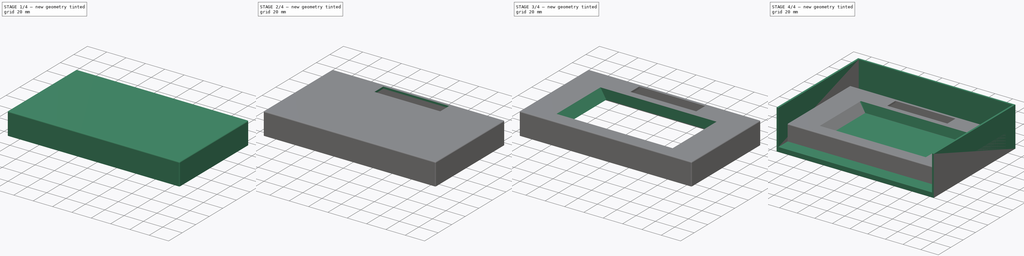
[diagram: build sequence overview — one tinted view per stage of 4, left to right]
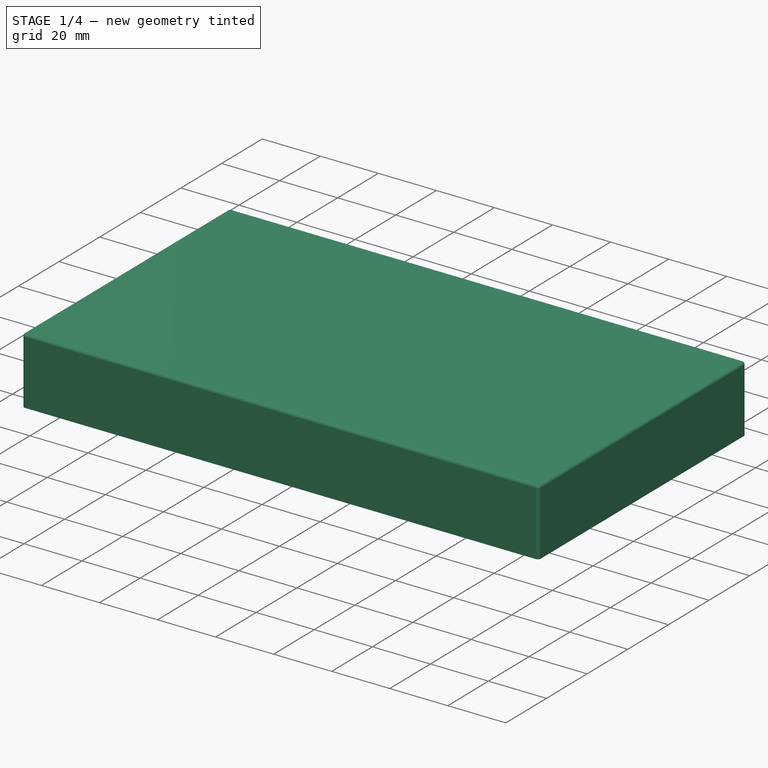
[diagram: stage 1 of 4 — iso view after this stage's code; geometry added in this stage tinted green]
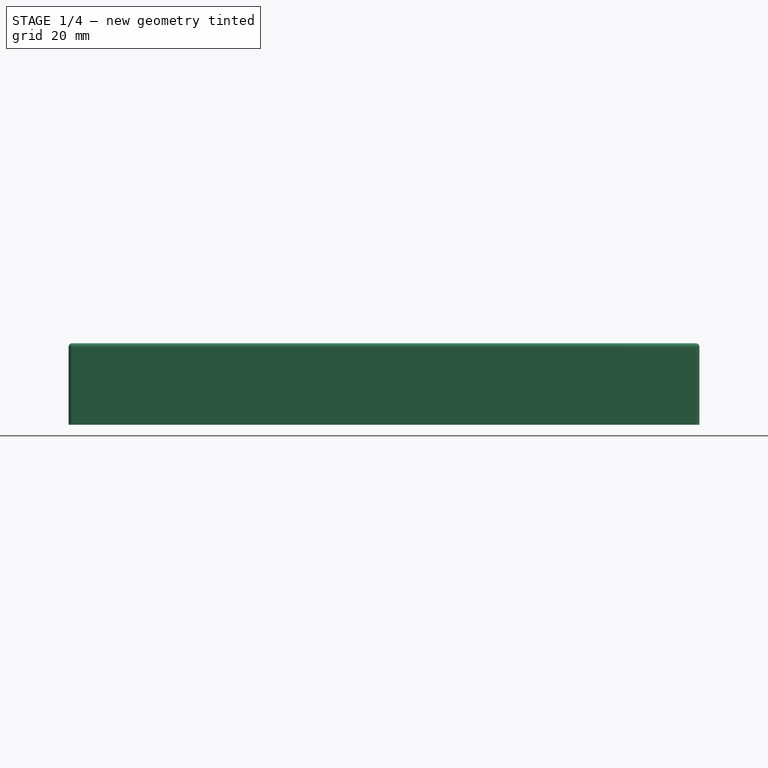
[diagram: stage 1 of 4 — front view after this stage's code; geometry added in this stage tinted green]
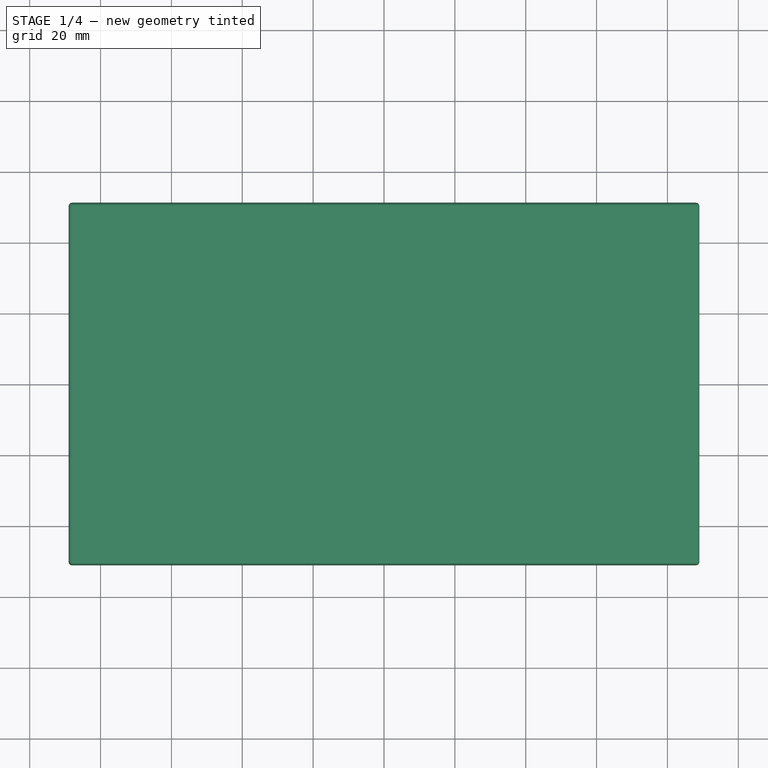
[diagram: stage 1 of 4 — top view after this stage's code; geometry added in this stage tinted green]
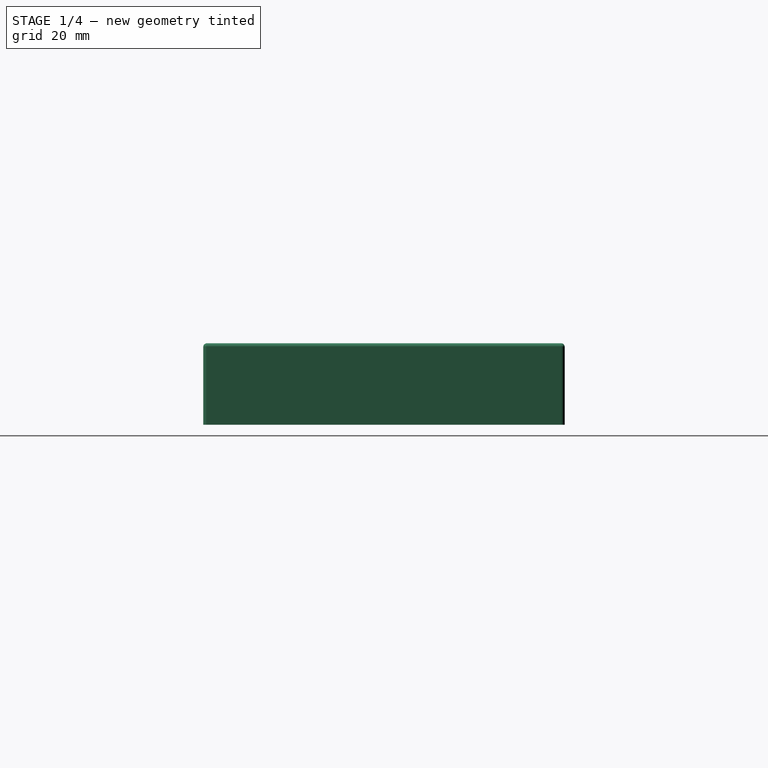
[diagram: stage 1 of 4 — right view after this stage's code; geometry added in this stage tinted green]
FCSTD DOCUMENT  (FreeCAD 0.21R33675 (Git))
Label: Double DIN Screen 5 Inch
License: All rights reserved
LicenseURL: https://en.wikipedia.org/wiki/All_rights_reserved
objects: Sketcher::SketchObject×10, PartDesign::Pocket×6, PartDesign::Pad×4, PartDesign::Body×2, PartDesign::Fillet×1, PartDesign::Chamfer×1
note: 36 computed .brp shape members not serialized (recipe doc carries the construction recipe); baked Part::Feature solids carry a one-line shape summary decoded from their .brp

FEATURE [PartDesign::Body] Body  label="Screen Base"
  Group = -> [Sketch,Pad,Sketch001,Pocket]
  Origin = -> Origin
  Tip = -> Pocket
FEATURE [Sketcher::SketchObject] Sketch002  label="Screen Panel Base Sketch"
  FullyConstrained = true
  MapMode = 5
  Support = -> [XY_Plane001]
  sketch-geometry (14):
    g0: LineSegment StartX=-89 StartY=51 StartZ=0 EndX=89 EndY=51 EndZ=0
    g1: LineSegment StartX=89 StartY=51 StartZ=0 EndX=89 EndY=-51 EndZ=0
    g2: LineSegment StartX=89 StartY=-51 StartZ=0 EndX=-89 EndY=-51 EndZ=0
    g3: LineSegment StartX=-89 StartY=-51 StartZ=0 EndX=-89 EndY=51 EndZ=0
    g4: LineSegment StartX=-89 StartY=50 StartZ=0 EndX=-89 EndY=-50 EndZ=0
    g5: LineSegment StartX=89 StartY=50 StartZ=0 EndX=89 EndY=-50 EndZ=0
    g6: LineSegment StartX=-88 StartY=51 StartZ=0 EndX=88 EndY=51 EndZ=0
    g7: LineSegment StartX=-88 StartY=-51 StartZ=0 EndX=88 EndY=-51 EndZ=0
    g8: ArcOfCircle CenterX=-88 CenterY=50 CenterZ=0 NormalX=0 NormalY=0 NormalZ=1 AngleXU=0 Radius=1 StartAngle=1.5708 EndAngle=3.14159
    g9: ArcOfCircle CenterX=88 CenterY=50 CenterZ=0 NormalX=0 NormalY=0 NormalZ=1 AngleXU=0 Radius=1 StartAngle=-2.7e-15 EndAngle=1.5708
    g10: ArcOfCircle CenterX=-88 CenterY=-50 CenterZ=0 NormalX=0 NormalY=0 NormalZ=1 AngleXU=0 Radius=1 StartAngle=3.14159 EndAngle=4.71239
    g11: ArcOfCircle CenterX=88 CenterY=-50 CenterZ=0 NormalX=0 NormalY=0 NormalZ=1 AngleXU=0 Radius=1 StartAngle=4.71239 EndAngle=6.28319
    g12: LineSegment StartX=88 StartY=-50 StartZ=0 EndX=89 EndY=-50 EndZ=0
    g13: LineSegment StartX=88 StartY=-50 StartZ=0 EndX=88 EndY=-51 EndZ=0
  constraints (38):
    c: Coincident(g0,g1)
    c: Coincident(g1,g2)
    c: Coincident(g2,g3)
    c: Coincident(g3,g0)
    c: Horizontal(g2)
    c: Vertical(g1)
    c: Symmetric(g0,g0,g-2)
    c: Symmetric(g0,g2,g-1)
    c: DistanceY(g3,g3) = 102
    c: DistanceX(g0,g0) = 178
    c: PointOnObject(g4,g3)
    c: PointOnObject(g5,g1)
    c: PointOnObject(g6,g0)
    c: PointOnObject(g7,g2)
    c: Symmetric(g7,g7,g-2)
    c: Equal(g7,g6)
    c: Symmetric(g6,g6,g-2)
    c: Symmetric(g4,g4,g-1)
    c: Symmetric(g5,g5,g-1)
    c: Equal(g4,g5)
    c: Coincident(g8,g4)
    c: Coincident(g8,g6)
    c: Angle(g8) = 1.5708
    c: Coincident(g9,g6)
    c: Coincident(g9,g5)
    c: Angle(g9) = 1.5708
    c: Coincident(g10,g4)
    c: Coincident(g10,g7)
    c: Equal(g10,g8)
    c: Coincident(g11,g7)
    c: Coincident(g11,g5)
    c: Equal(g11,g8)
    c: Coincident(g12,g11)
    c: Coincident(g12,g5)
    c: Horizontal(g12)
    c: Coincident(g13,g11)
    c: Coincident(g13,g7)
    c: Radius(g9) = 1
FEATURE [PartDesign::Pad] Pad001  label="Screen Panel Base"
  Direction = (0,0,1)
  Length = 23
  Length2 = 10
  Profile = -> Sketch002
  ReferenceAxis = -> Sketch002 [N_Axis]
  Type = 0
FEATURE [PartDesign::Fillet] Fillet  label="Screen Panel Base Fillet"
  Base = -> Pad001 [Edge7]
  BaseFeature = -> Pad001
  Radius = 1
  SupportTransform = false
  UseAllEdges = false
FEATURE [Sketcher::SketchObject] Sketch003  label="Screen Panel Shell Sketch"
  ExternalGeometry = -> [Fillet]
  FullyConstrained = true
  MapMode = 5
  Placement = pos=(0,0,0) rot=(1,0,0;3.14159rad)
  Support = -> [Fillet]
  sketch-geometry (18):
    g0: LineSegment StartX=-87 StartY=-48 StartZ=0 EndX=-87 EndY=48 EndZ=0
    g1: LineSegment StartX=-86 StartY=49 StartZ=0 EndX=86 EndY=49 EndZ=0
    g2: LineSegment StartX=87 StartY=48 StartZ=0 EndX=87 EndY=-48 EndZ=0
    g3: LineSegment StartX=86 StartY=-49 StartZ=0 EndX=-86 EndY=-49 EndZ=0
    g4: ArcOfCircle CenterX=-86 CenterY=48 CenterZ=0 NormalX=0 NormalY=0 NormalZ=1 AngleXU=0 Radius=1 StartAngle=1.5708 EndAngle=3.14159
    g5: LineSegment StartX=-86 StartY=49 StartZ=0 EndX=-86 EndY=48 EndZ=0
    g6: LineSegment StartX=-86 StartY=48 StartZ=0 EndX=-87 EndY=48 EndZ=0
    g7: ArcOfCircle CenterX=86 CenterY=-48 CenterZ=0 NormalX=0 NormalY=0 NormalZ=1 AngleXU=0 Radius=1 StartAngle=4.71239 EndAngle=6.28319
    g8: LineSegment StartX=86 StartY=-49 StartZ=0 EndX=86 EndY=-48 EndZ=0
    g9: LineSegment StartX=86 StartY=-48 StartZ=0 EndX=87 EndY=-48 EndZ=0
    g10: ArcOfCircle CenterX=86 CenterY=48 CenterZ=0 NormalX=0 NormalY=0 NormalZ=1 AngleXU=0 Radius=1 StartAngle=-2.7e-15 EndAngle=1.5708
    g11: LineSegment StartX=86 StartY=49 StartZ=0 EndX=86 EndY=48 EndZ=0
    g12: LineSegment StartX=86 StartY=48 StartZ=0 EndX=87 EndY=48 EndZ=0
    g13: ArcOfCircle CenterX=-86 CenterY=-48 CenterZ=0 NormalX=0 NormalY=0 NormalZ=1 AngleXU=0 Radius=1 StartAngle=3.14159 EndAngle=4.71239
    g14: LineSegment StartX=-87 StartY=-48 StartZ=0 EndX=-86 EndY=-48 EndZ=0
    g15: LineSegment StartX=-86 StartY=-48 StartZ=0 EndX=-86 EndY=-49 EndZ=0
    g16: LineSegment StartX=-87 StartY=48 StartZ=0 EndX=-89 EndY=48 EndZ=0
    g17: LineSegment StartX=-86 StartY=49 StartZ=0 EndX=-86 EndY=51 EndZ=0
  constraints (45):
    c: Equal(g3,g1)
    c: Symmetric(g1,g1,g-2)
    c: Symmetric(g3,g3,g-2)
    c: Symmetric(g0,g0,g-1)
    c: Symmetric(g2,g2,g-1)
    c: Coincident(g4,g0)
    c: Coincident(g4,g1)
    c: Coincident(g5,g1)
    c: Coincident(g5,g4)
    c: Coincident(g6,g4)
    c: Coincident(g6,g0)
    c: Horizontal(g6)
    c: Vertical(g5)
    c: Symmetric(g2,g0,g-2)
    c: Coincident(g7,g3)
    c: Coincident(g7,g2)
    c: Equal(g7,g4)
    c: Coincident(g8,g3)
    c: Coincident(g8,g7)
    c: Coincident(g9,g7)
    c: Coincident(g9,g2)
    c: Horizontal(g9)
    c: Coincident(g10,g1)
    c: Coincident(g10,g2)
    c: Equal(g4,g10)
    c: Coincident(g11,g1)
    c: Coincident(g11,g10)
    c: Coincident(g12,g10)
    c: Coincident(g12,g2)
    c: Coincident(g13,g0)
    c: Coincident(g13,g3)
    c: Coincident(g14,g0)
    c: Coincident(g14,g13)
    c: Horizontal(g14)
    c: Coincident(g15,g13)
    c: Coincident(g15,g3)
    c: Coincident(g16,g0)
    c: PointOnObject(g16,g-3)
    c: Horizontal(g16)
    c: DistanceX(g16,g16) = 2
    c: Coincident(g17,g1)
    c: PointOnObject(g17,g-5)
    c: Vertical(g17)
    c: Equal(g17,g16)
    c: Equal(g4,g-4)
FEATURE [PartDesign::Pocket] Pocket001  label="Screen Panel Shell"
  BaseFeature = -> Fillet
  Direction = (0,0,1)
  Length = 21
  Length2 = 5
  Profile = -> Sketch003
  ReferenceAxis = -> Sketch003 [N_Axis]
  Type = 0
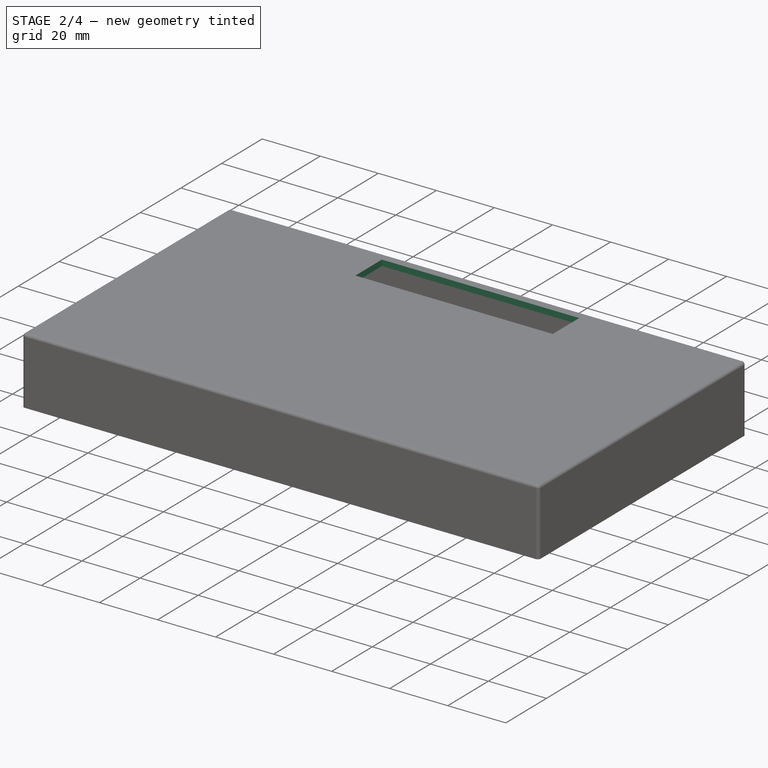
[diagram: stage 2 of 4 — iso view after this stage's code; geometry added in this stage tinted green]
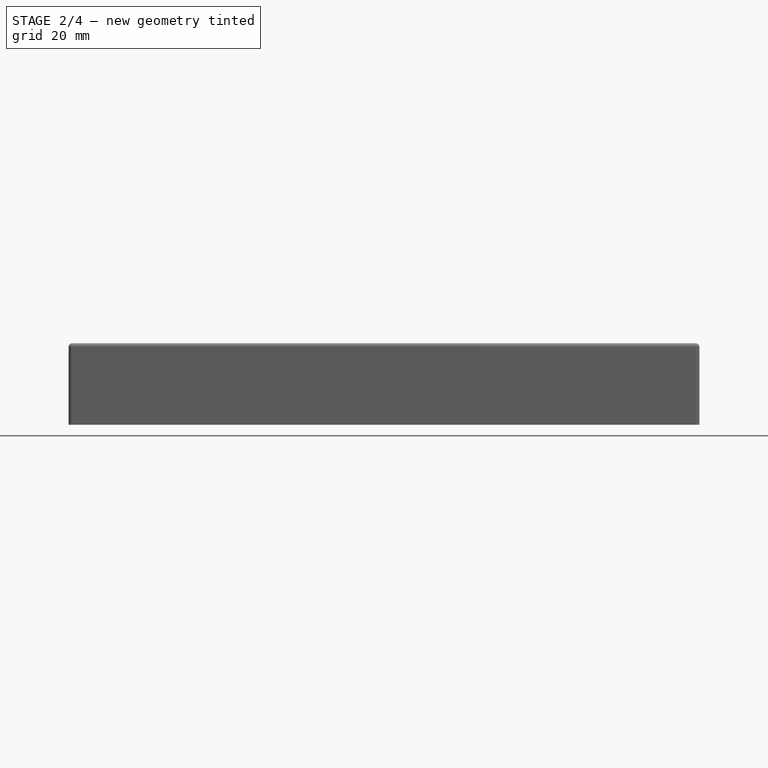
[diagram: stage 2 of 4 — front view after this stage's code; geometry added in this stage tinted green]
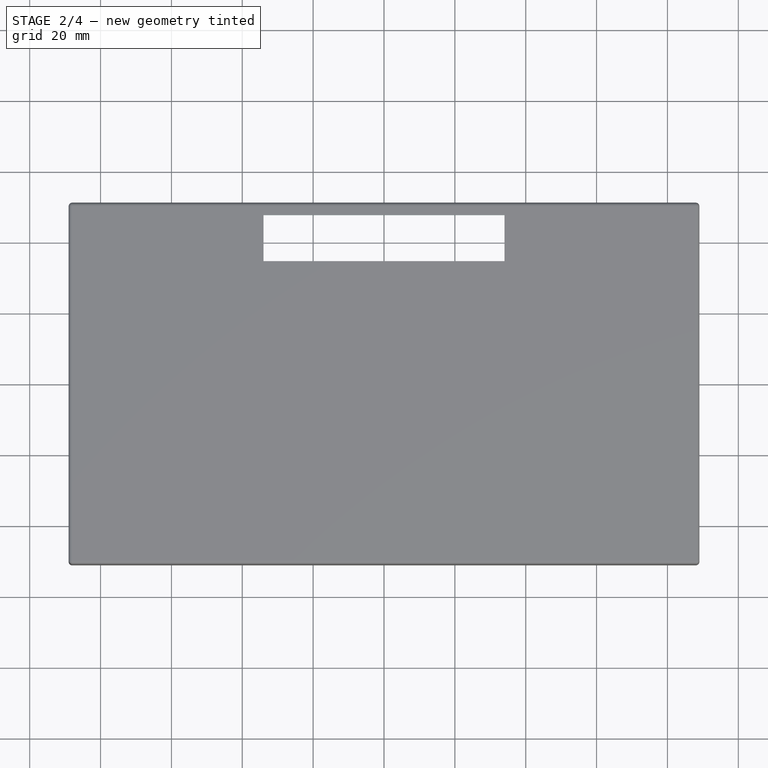
[diagram: stage 2 of 4 — top view after this stage's code; geometry added in this stage tinted green]
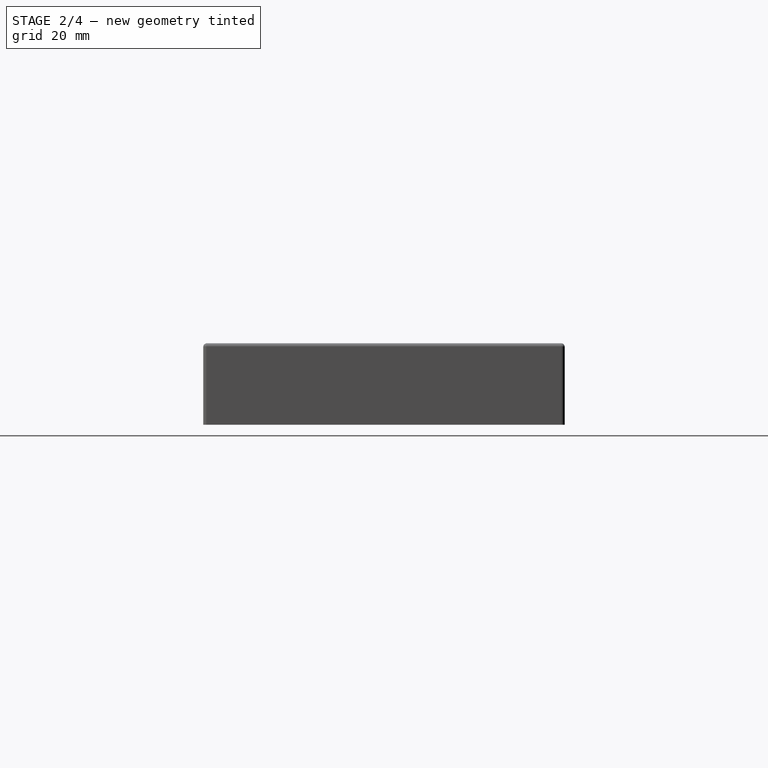
[diagram: stage 2 of 4 — right view after this stage's code; geometry added in this stage tinted green]
FEATURE [Sketcher::SketchObject] Sketch004  label="Screen Display Cut Sketch"
  ExternalGeometry = -> [Pocket001]
  FullyConstrained = true
  MapMode = 5
  Placement = pos=(0,0,23) rot=(0,0,1;0rad)
  Support = -> [Pocket001]
  sketch-geometry (5):
    g0: LineSegment StartX=-60 StartY=29.3 StartZ=0 EndX=60 EndY=29.3 EndZ=0
    g1: LineSegment StartX=60 StartY=29.3 StartZ=0 EndX=60 EndY=-37.5 EndZ=0
    g2: LineSegment StartX=60 StartY=-37.5 StartZ=0 EndX=-60 EndY=-37.5 EndZ=0
    g3: LineSegment StartX=-60 StartY=-37.5 StartZ=0 EndX=-60 EndY=29.3 EndZ=0
    g4: LineSegment StartX=-60 StartY=-37.5 StartZ=0 EndX=-60 EndY=-51 EndZ=0
  constraints (14):
    c: Coincident(g0,g1)
    c: Coincident(g1,g2)
    c: Coincident(g2,g3)
    c: Coincident(g3,g0)
    c: Horizontal(g0)
    c: Vertical(g1)
    c: Vertical(g3)
    c: Symmetric(g2,g1,g-2)
    c: DistanceY(g3,g3) = 66.8
    c: DistanceX(g0,g0) = 120
    c: Coincident(g4,g2)
    c: PointOnObject(g4,g-3)
    c: Vertical(g4)
    c: DistanceY(g4,g4) = 13.5
FEATURE [PartDesign::Pocket] Pocket002  label="Screen Display Cut"
  BaseFeature = -> Pocket001
  Direction = (0,0,-1)
  Length = 5
  Length2 = 5
  Profile = -> Sketch004
  ReferenceAxis = -> Sketch004 [N_Axis]
  Type = 0
FEATURE [Sketcher::SketchObject] Sketch005  label="Tape Slot Cut Sketch"
  ExternalGeometry = -> [Pocket002]
  FullyConstrained = true
  MapMode = 5
  Placement = pos=(0,0,23) rot=(0,0,1;0rad)
  Support = -> [Pocket002]
  sketch-geometry (4):
    g0: LineSegment StartX=-34 StartY=47.5 StartZ=0 EndX=34 EndY=47.5 EndZ=0
    g1: LineSegment StartX=34 StartY=47.5 StartZ=0 EndX=34 EndY=34.5 EndZ=0
    g2: LineSegment StartX=34 StartY=34.5 StartZ=0 EndX=-34 EndY=34.5 EndZ=0
    g3: LineSegment StartX=-34 StartY=34.5 StartZ=0 EndX=-34 EndY=47.5 EndZ=0
  constraints (11):
    c: Coincident(g0,g1)
    c: Coincident(g1,g2)
    c: Coincident(g2,g3)
    c: Coincident(g3,g0)
    c: Horizontal(g0)
    c: Vertical(g1)
    c: Vertical(g3)
    c: DistanceX(g0,g0) = 68
    c: DistanceY(g3,g3) = 13
    c: DistanceY(g0,g-3) = 3.5
    c: Symmetric(g2,g1,g-2)
FEATURE [PartDesign::Pocket] Pocket003  label="Tape Slot Cut"
  BaseFeature = -> Pocket002
  Direction = (0,0,-1)
  Length = 5
  Length2 = 5
  Profile = -> Sketch005
  ReferenceAxis = -> Sketch005 [N_Axis]
  Type = 0
FEATURE [Sketcher::SketchObject] Sketch006  label="Screen Bevel Box Sketch"
  ExternalGeometry = -> [Pocket003]
  FullyConstrained = true
  MapMode = 5
  Placement = pos=(0,0,23) rot=(0,0,1;0rad)
  Support = -> [Pocket003]
  sketch-geometry (4):
    g0: LineSegment StartX=-60 StartY=29.3 StartZ=0 EndX=60 EndY=29.3 EndZ=0
    g1: LineSegment StartX=60 StartY=29.3 StartZ=0 EndX=60 EndY=-37.5 EndZ=0
    g2: LineSegment StartX=60 StartY=-37.5 StartZ=0 EndX=-60 EndY=-37.5 EndZ=0
    g3: LineSegment StartX=-60 StartY=-37.5 StartZ=0 EndX=-60 EndY=29.3 EndZ=0
  constraints (10):
    c: Coincident(g0,g1)
    c: Coincident(g1,g2)
    c: Coincident(g2,g3)
    c: Coincident(g3,g0)
    c: Horizontal(g0)
    c: Horizontal(g2)
    c: Vertical(g1)
    c: Vertical(g3)
    c: Coincident(g0,g-4)
    c: Coincident(g1,g-6)
FEATURE [PartDesign::Pad] Pad002  label="Screen Bevel Box"
  BaseFeature = -> Pocket003
  Direction = (0,0,1)
  Length = 10
  Length2 = 10
  Profile = -> Sketch006
  ReferenceAxis = -> Sketch006 [N_Axis]
  Reversed = true
  Type = 0
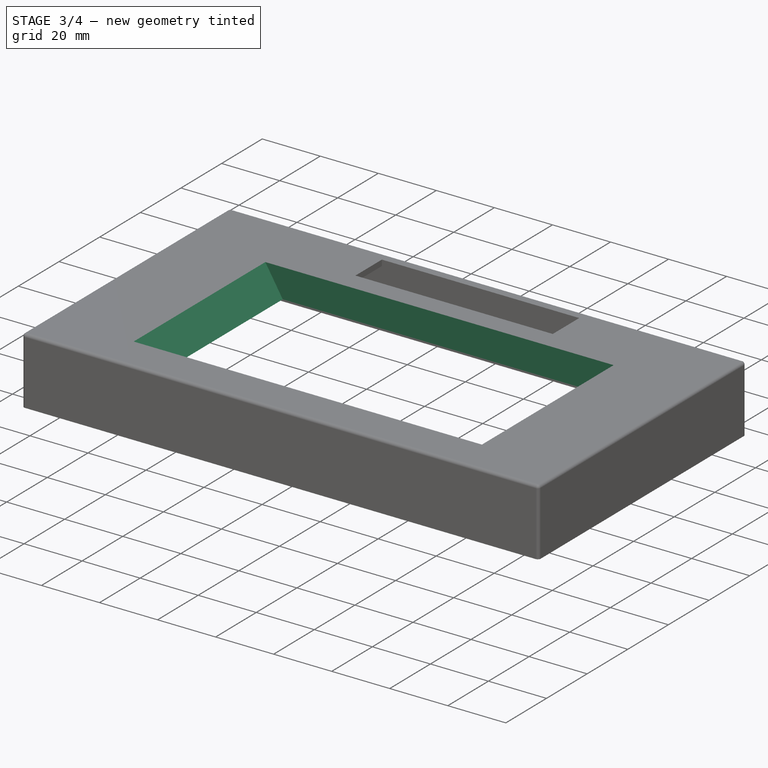
[diagram: stage 3 of 4 — iso view after this stage's code; geometry added in this stage tinted green]
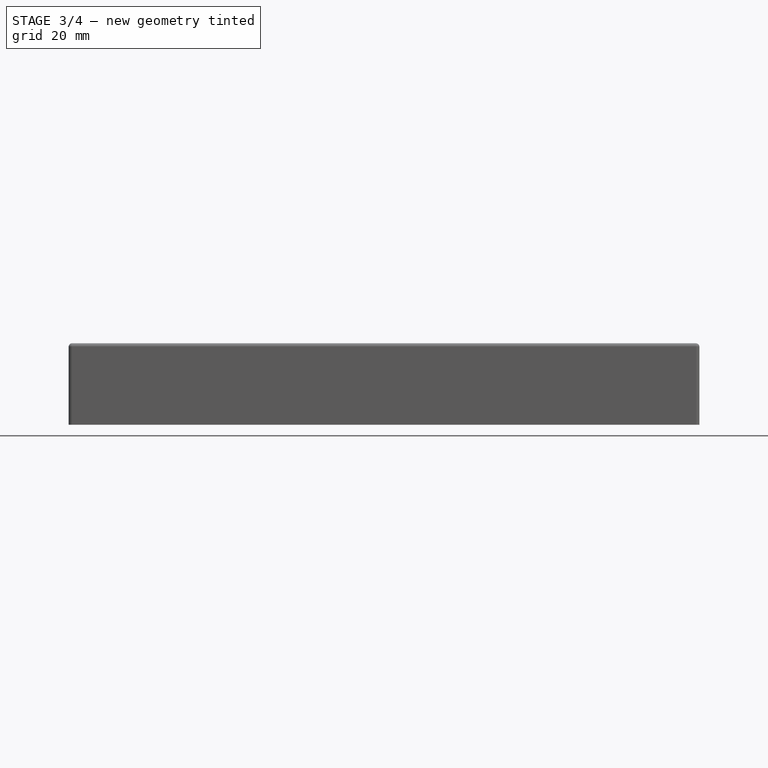
[diagram: stage 3 of 4 — front view after this stage's code; geometry added in this stage tinted green]
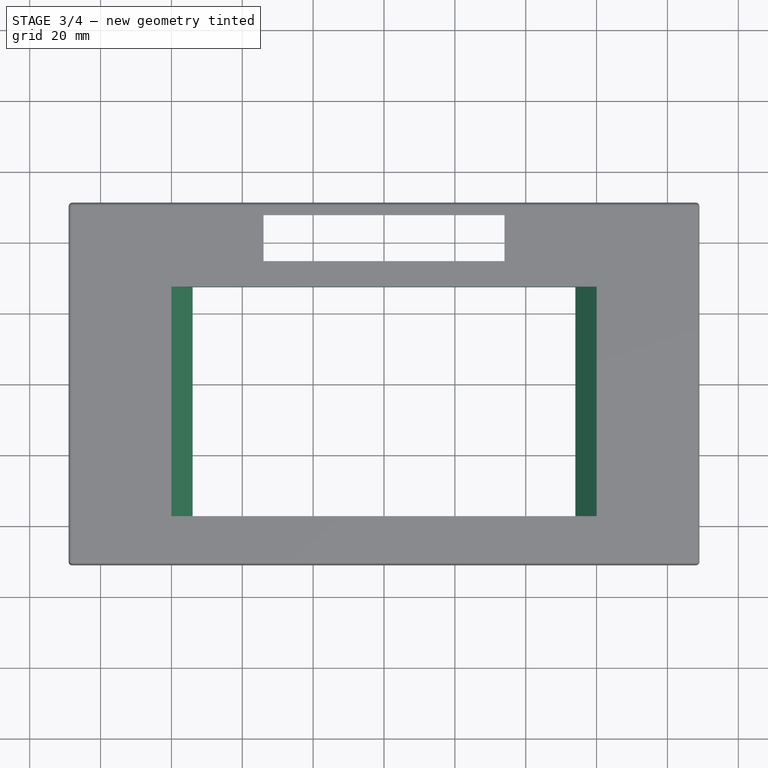
[diagram: stage 3 of 4 — top view after this stage's code; geometry added in this stage tinted green]
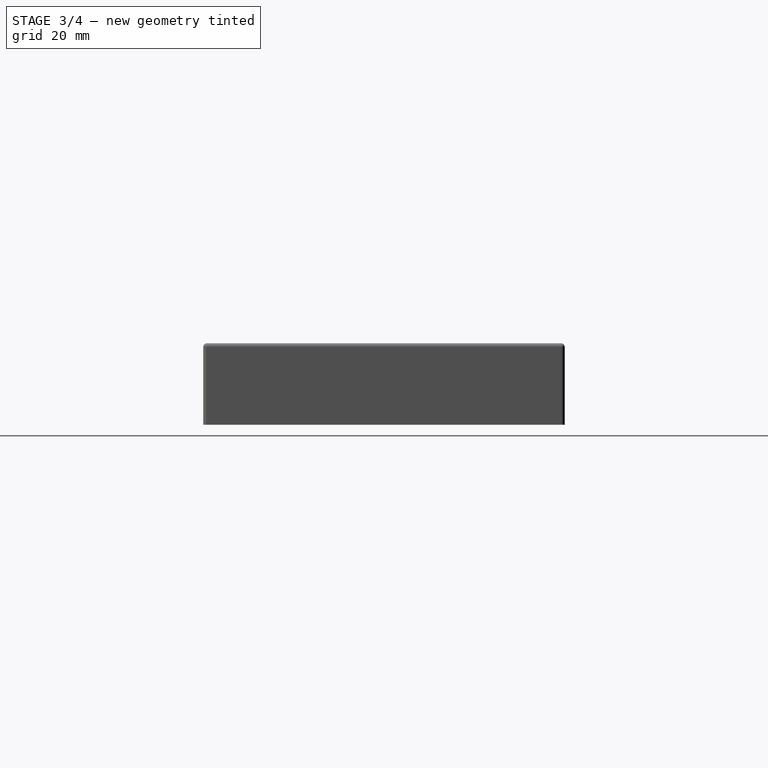
[diagram: stage 3 of 4 — right view after this stage's code; geometry added in this stage tinted green]
FEATURE [Sketcher::SketchObject] Sketch007  label="Screen Display Viewing Area Sketch"
  ExternalGeometry = -> [Pad002]
  FullyConstrained = true
  MapMode = 5
  Placement = pos=(0,0,23) rot=(0,0,1;0rad)
  Support = -> [Pad002]
  sketch-geometry (4):
    g0: LineSegment StartX=-54 StartY=-37.5 StartZ=0 EndX=54 EndY=-37.5 EndZ=0
    g1: LineSegment StartX=54 StartY=-37.5 StartZ=0 EndX=54 EndY=27.3 EndZ=0
    g2: LineSegment StartX=54 StartY=27.3 StartZ=0 EndX=-54 EndY=27.3 EndZ=0
    g3: LineSegment StartX=-54 StartY=27.3 StartZ=0 EndX=-54 EndY=-37.5 EndZ=0
  constraints (11):
    c: Coincident(g0,g1)
    c: Coincident(g1,g2)
    c: Coincident(g2,g3)
    c: Coincident(g3,g0)
    c: Horizontal(g0)
    c: Vertical(g1)
    c: Vertical(g3)
    c: PointOnObject(g0,g-5)
    c: Symmetric(g2,g1,g-2)
    c: DistanceX(g2,g2) = 108
    c: DistanceY(g3,g3) = 64.8
FEATURE [PartDesign::Pocket] Pocket004  label="Scren Display Viewing Area"
  BaseFeature = -> Pad002
  Direction = (0,0,-1)
  Length = 11
  Length2 = 5
  Profile = -> Sketch007
  ReferenceAxis = -> Sketch007 [N_Axis]
  Type = 0
FEATURE [Sketcher::SketchObject] Sketch008  label="Screen Bevel Horizontal Sketch"
  ExternalGeometry = -> [Pocket004]
  FullyConstrained = true
  MapMode = 5
  Placement = pos=(0,27.3,0) rot=(1,0,0;1.5708rad)
  Support = -> [Pocket004]
  sketch-geometry (6):
    g0: LineSegment StartX=-60 StartY=23 StartZ=0 EndX=-54 EndY=23 EndZ=0
    g1: LineSegment StartX=-54 StartY=23 StartZ=0 EndX=-54 EndY=13 EndZ=0
    g2: LineSegment StartX=-54 StartY=13 StartZ=0 EndX=-60 EndY=23 EndZ=0
    g3: LineSegment StartX=54 StartY=23 StartZ=0 EndX=60 EndY=23 EndZ=0
    g4: LineSegment StartX=54 StartY=23 StartZ=0 EndX=54 EndY=13 EndZ=0
    g5: LineSegment StartX=54 StartY=13 StartZ=0 EndX=60 EndY=23 EndZ=0
  constraints (12):
    c: Coincident(g0,g-6)
    c: Coincident(g0,g-7)
    c: Coincident(g1,g0)
    c: Coincident(g1,g-8)
    c: Coincident(g2,g1)
    c: Coincident(g2,g0)
    c: Coincident(g3,g-3)
    c: Coincident(g3,g-4)
    c: Coincident(g4,g3)
    c: Coincident(g4,g-3)
    c: Coincident(g5,g4)
    c: Coincident(g5,g3)
FEATURE [PartDesign::Pocket] Pocket005  label="Screen Bevel Horizontal"
  BaseFeature = -> Pocket004
  Direction = (0,1,-2e-16)
  Length = 64.8
  Length2 = 5
  Profile = -> Sketch008
  ReferenceAxis = -> Sketch008 [N_Axis]
  Reversed = true
  Type = 0
FEATURE [Sketcher::SketchObject] Sketch009  label="Screen Support Sketch"
  ExternalGeometry = -> [Pocket005]
  FullyConstrained = true
  MapMode = 5
  Placement = pos=(0,0,21) rot=(1,0,0;3.14159rad)
  Support = -> [Pocket005]
  sketch-geometry (8):
    g0: LineSegment StartX=60 StartY=-29.3 StartZ=0 EndX=-60 EndY=-29.3 EndZ=0
    g1: LineSegment StartX=-60 StartY=-29.3 StartZ=0 EndX=-60 EndY=-30.3 EndZ=0
    g2: LineSegment StartX=-60 StartY=-30.3 StartZ=0 EndX=60 EndY=-30.3 EndZ=0
    g3: LineSegment StartX=60 StartY=-30.3 StartZ=0 EndX=60 EndY=-29.3 EndZ=0
    g4: LineSegment StartX=60 StartY=37.5 StartZ=0 EndX=-60 EndY=37.5 EndZ=0
    g5: LineSegment StartX=-60 StartY=37.5 StartZ=0 EndX=-60 EndY=45.5 EndZ=0
    g6: LineSegment StartX=-60 StartY=45.5 StartZ=0 EndX=60 EndY=45.5 EndZ=0
    g7: LineSegment StartX=60 StartY=45.5 StartZ=0 EndX=60 EndY=37.5 EndZ=0
  constraints (20):
    c: Coincident(g0,g1)
    c: Coincident(g1,g2)
    c: Coincident(g2,g3)
    c: Coincident(g3,g0)
    c: Horizontal(g2)
    c: Vertical(g1)
    c: Vertical(g3)
    c: Coincident(g0,g-3)
    c: Coincident(g0,g-3)
    c: DistanceY(g1,g1) = 1
    c: Coincident(g4,g5)
    c: Coincident(g5,g6)
    c: Coincident(g6,g7)
    c: Coincident(g7,g4)
    c: Horizontal(g6)
    c: Vertical(g5)
    c: Vertical(g7)
    c: Coincident(g4,g-6)
    c: Coincident(g4,g-7)
    c: DistanceY(g7,g7) = 8
FEATURE [PartDesign::Pad] Pad003  label="Screen Support"
  BaseFeature = -> Pocket005
  Direction = (0,0,-1)
  Length = 8
  Length2 = 10
  Profile = -> Sketch009
  ReferenceAxis = -> Sketch009 [N_Axis]
  Type = 0
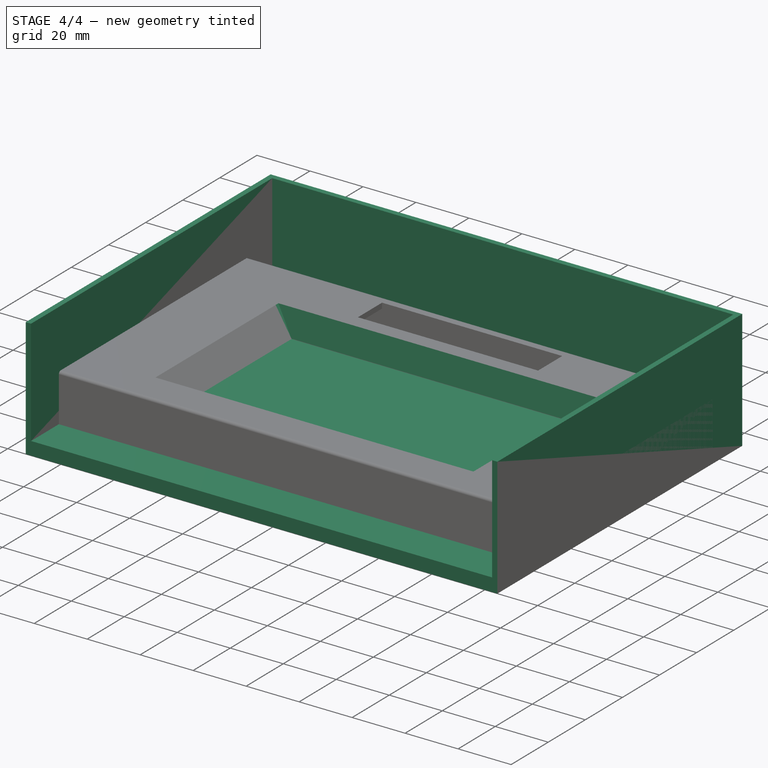
[diagram: stage 4 of 4 — iso view after this stage's code; geometry added in this stage tinted green]
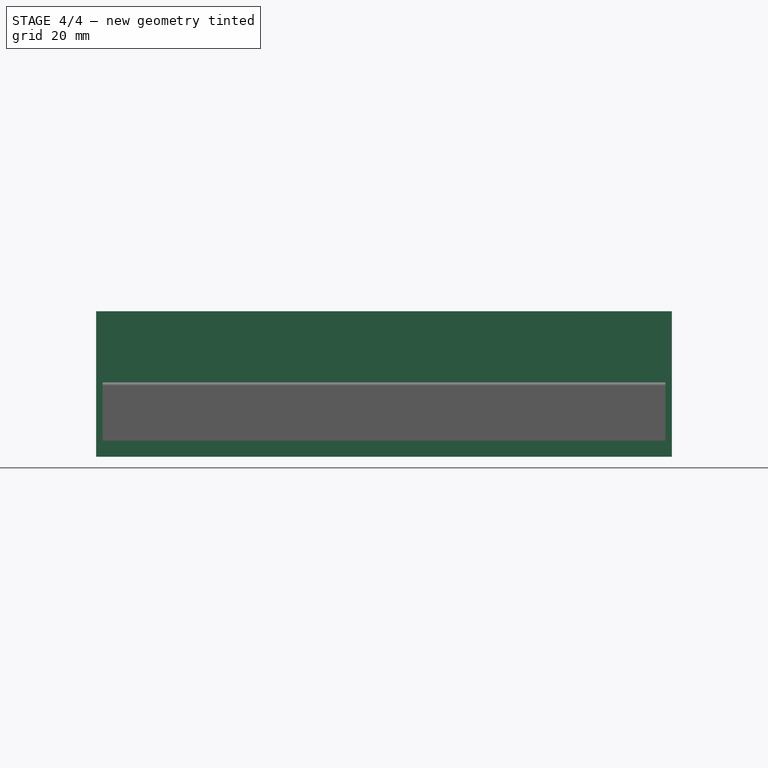
[diagram: stage 4 of 4 — front view after this stage's code; geometry added in this stage tinted green]
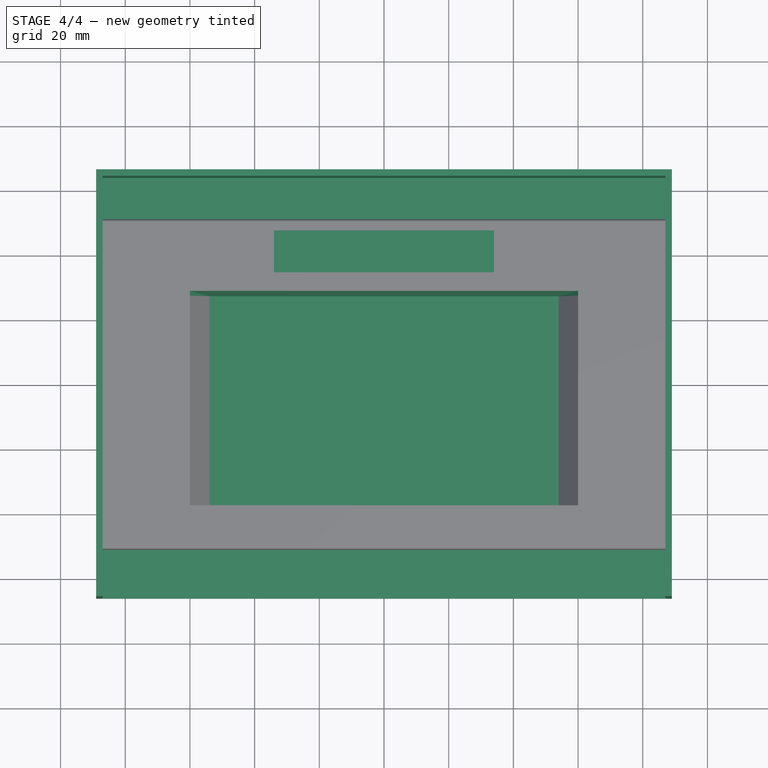
[diagram: stage 4 of 4 — top view after this stage's code; geometry added in this stage tinted green]
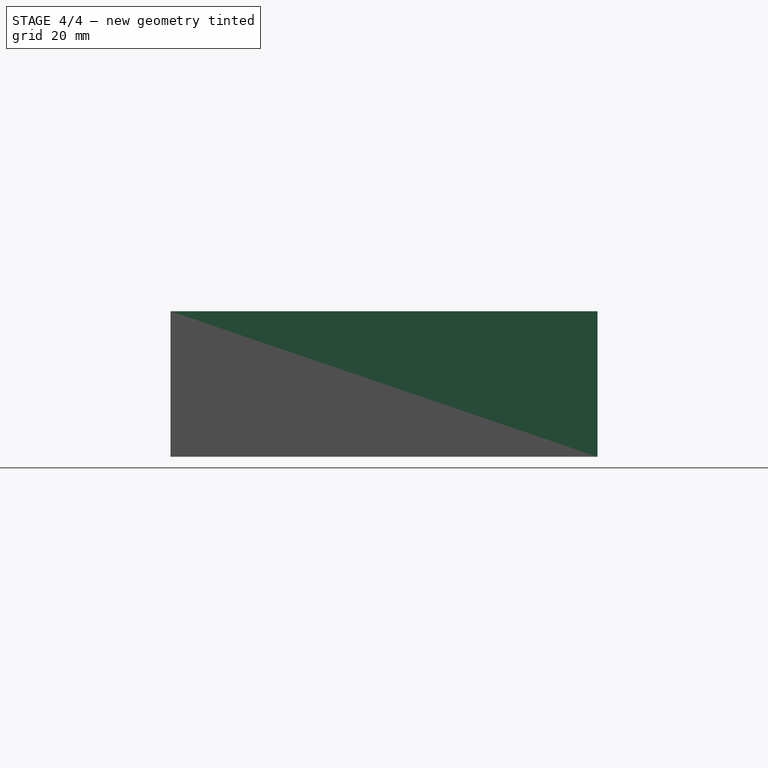
[diagram: stage 4 of 4 — right view after this stage's code; geometry added in this stage tinted green]
FEATURE [Sketcher::SketchObject] Sketch  label="Screen Base Base Sketch"
  FullyConstrained = true
  MapMode = 5
  Support = -> [XY_Plane]
  sketch-geometry (4):
    g0: LineSegment StartX=-89 StartY=66 StartZ=0 EndX=89 EndY=66 EndZ=0
    g1: LineSegment StartX=89 StartY=66 StartZ=0 EndX=89 EndY=-66 EndZ=0
    g2: LineSegment StartX=89 StartY=-66 StartZ=0 EndX=-89 EndY=-66 EndZ=0
    g3: LineSegment StartX=-89 StartY=-66 StartZ=0 EndX=-89 EndY=66 EndZ=0
  constraints (10):
    c: Coincident(g0,g1)
    c: Coincident(g1,g2)
    c: Coincident(g2,g3)
    c: Coincident(g3,g0)
    c: Horizontal(g2)
    c: Vertical(g1)
    c: Symmetric(g0,g2,g-1)
    c: Symmetric(g0,g0,g-2)
    c: DistanceX(g0,g0) = 178
    c: DistanceY(g3,g3) = 132
FEATURE [PartDesign::Pad] Pad  label="Screen Base Base"
  Direction = (0,0,1)
  Length = 45
  Length2 = 10
  Profile = -> Sketch
  ReferenceAxis = -> Sketch [N_Axis]
  Type = 0
FEATURE [Sketcher::SketchObject] Sketch001  label="Screen Base Shell Sketch"
  ExternalGeometry = -> [Pad]
  FullyConstrained = true
  MapMode = 5
  Placement = pos=(0,0,45) rot=(0,0,1;0rad)
  Support = -> [Pad]
  sketch-geometry (4):
    g0: LineSegment StartX=-87 StartY=64 StartZ=0 EndX=87 EndY=64 EndZ=0
    g1: LineSegment StartX=87 StartY=64 StartZ=0 EndX=87 EndY=-66 EndZ=0
    g2: LineSegment StartX=87 StartY=-66 StartZ=0 EndX=-87 EndY=-66 EndZ=0
    g3: LineSegment StartX=-87 StartY=-66 StartZ=0 EndX=-87 EndY=64 EndZ=0
  constraints (11):
    c: Coincident(g0,g1)
    c: Coincident(g1,g2)
    c: Coincident(g2,g3)
    c: Coincident(g3,g0)
    c: Horizontal(g2)
    c: Vertical(g1)
    c: Vertical(g3)
    c: PointOnObject(g1,g-6)
    c: Symmetric(g0,g0,g-2)
    c: DistanceX(g-4,g0) = 2
    c: DistanceY(g0,g-4) = 2
FEATURE [PartDesign::Pocket] Pocket  label="Screen Base Shell"
  BaseFeature = -> Pad
  Direction = (0,0,-1)
  Length = 40
  Length2 = 5
  Profile = -> Sketch001
  ReferenceAxis = -> Sketch001 [N_Axis]
  Type = 0
FEATURE [PartDesign::Chamfer] Chamfer  label="Screen Bevel Vertical"
  Angle = 45
  Base = -> Pad003 [Edge94,Edge93,Edge95]
  BaseFeature = -> Pad003
  ChamferType = 1
  FlipDirection = false
  Size = 1.5
  Size2 = 9.9
  SupportTransform = false
  UseAllEdges = false
FEATURE [PartDesign::Body] Body001  label="Screen Panel"
  Group = -> [Sketch002,Pad001,Fillet,Sketch003,Pocket001,Sketch004,Pocket002,Sketch005,Pocket003,Sketch006,Pad002,Sketch007,Pocket004,Sketch008,Pocket005,Sketch009,Pad003,Chamfer]
  Origin = -> Origin001
  Tip = -> Chamfer
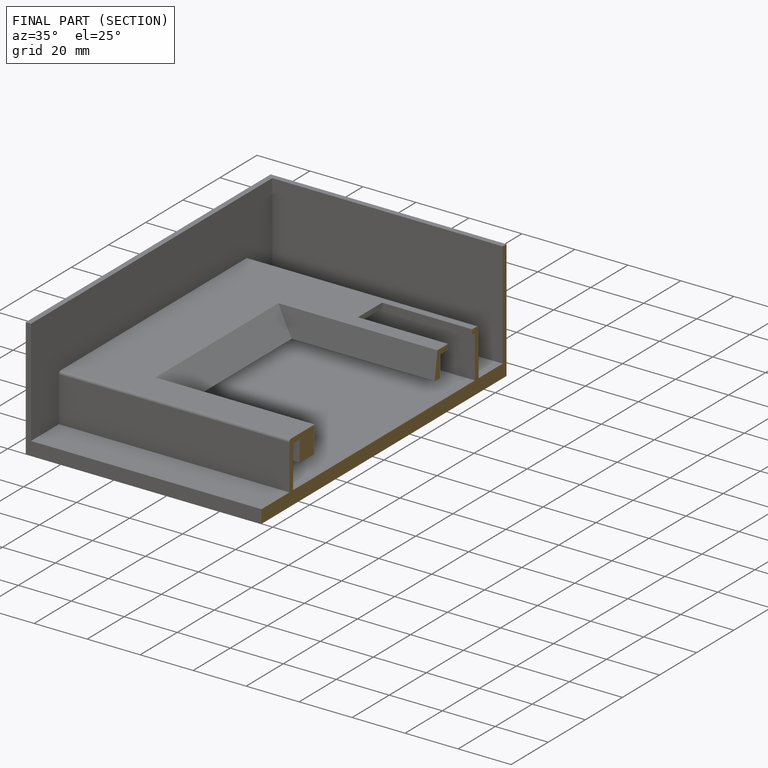
[diagram: finished part — half-section view (interior)]
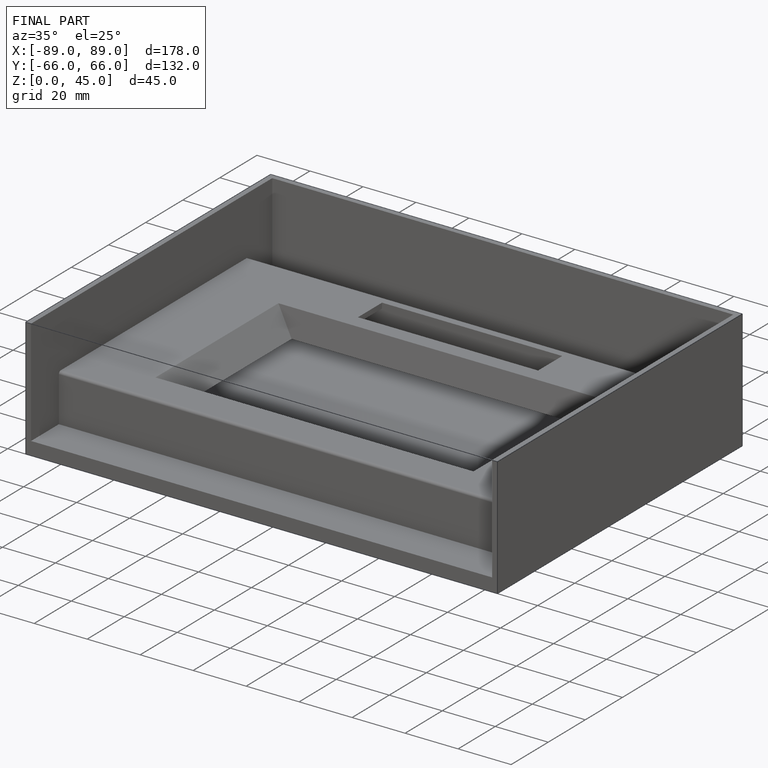
[diagram: finished part — iso view with bounding-box wireframe]
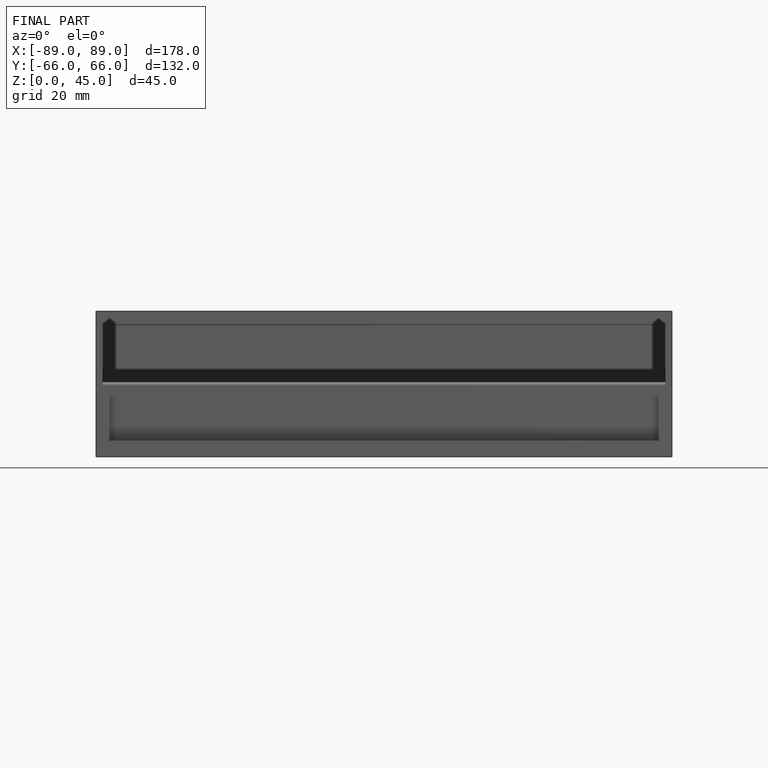
[diagram: finished part — front view with bounding-box wireframe]
